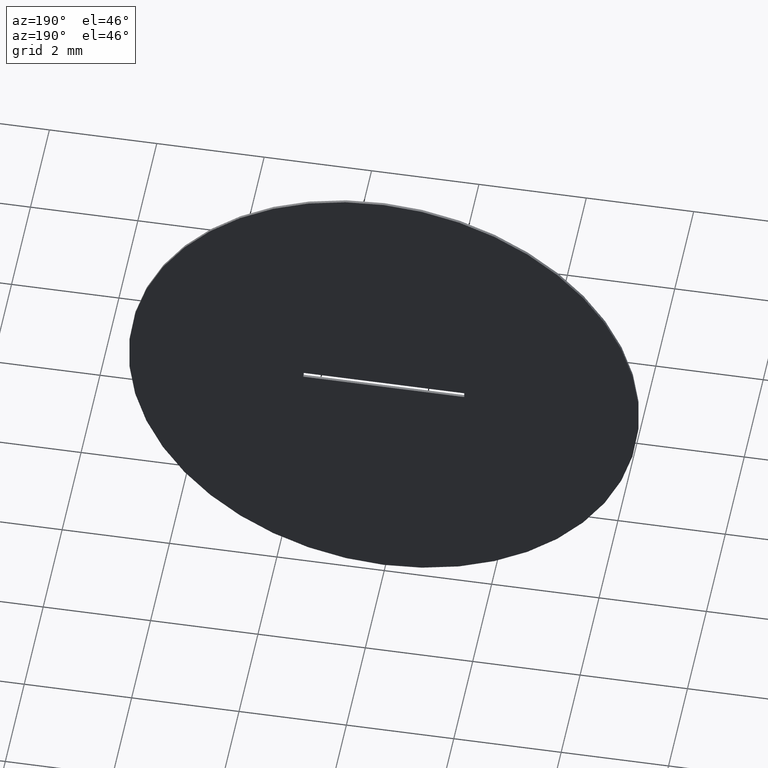
[diagram: clean part render]
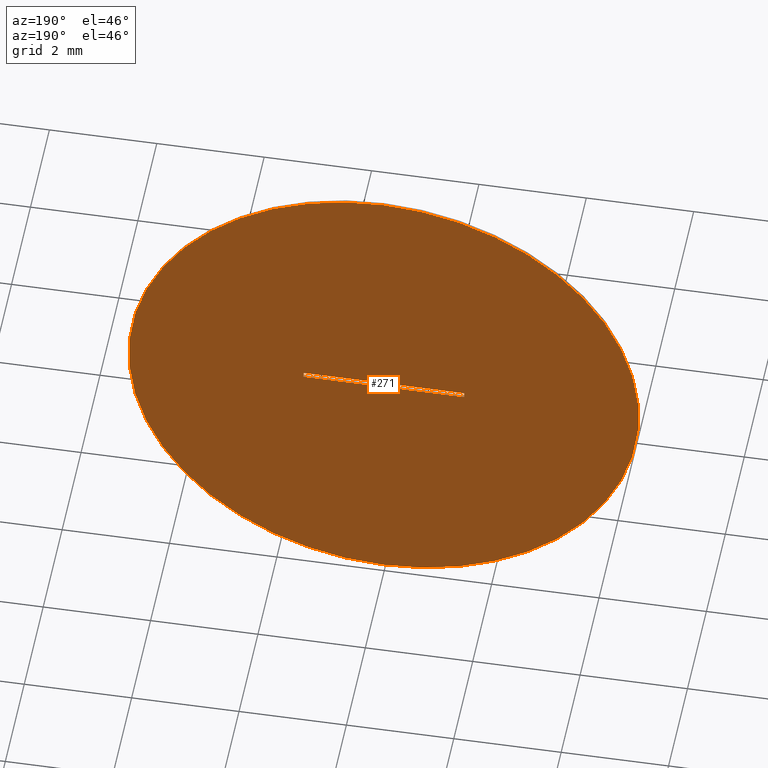
[diagram: same view with one face highlighted and labeled with its STEP entity id]
A machine part, auxiliary view. The second image highlights one B-rep face of the part: STEP entity #271.
In plain terms, the highlighted planar face has unit normal (0, 1, 0).
Its self-contained STEP definition (entity closure, byte-faithful):
#5 = VERTEX_POINT ( 'NONE', #56 ) ;
#9 = EDGE_LOOP ( 'NONE', ( #96, #263, #169, #195 ) ) ;
#10 = DIRECTION ( 'NONE',  ( 0.000000000000000000, 1.000000000000000000, 0.000000000000000000 ) ) ;
#13 = CARTESIAN_POINT ( 'NONE',  ( 1.500000000000000000, 0.05000000000000000278, -0.04999999999999999584 ) ) ;
#14 = VECTOR ( 'NONE', #99, 1000.000000000000000 ) ;
#23 = CARTESIAN_POINT ( 'NONE',  ( -1.500000000000000000, 0.05000000000000000278, 0.05000000000000000971 ) ) ;
#24 = AXIS2_PLACEMENT_3D ( 'NONE', #115, #265, #29 ) ;
#26 = EDGE_CURVE ( 'NONE', #5, #54, #279, .T. ) ;
#27 = FACE_BOUND ( 'NONE', #9, .T. ) ;
#29 = DIRECTION ( 'NONE',  ( 0.000000000000000000, -0.000000000000000000, 1.000000000000000000 ) ) ;
#35 = VECTOR ( 'NONE', #306, 1000.000000000000000 ) ;
#36 = VECTOR ( 'NONE', #101, 1000.000000000000000 ) ;
#38 = DIRECTION ( 'NONE',  ( 0.000000000000000000, 1.000000000000000000, 0.000000000000000000 ) ) ;
#40 = CARTESIAN_POINT ( 'NONE',  ( -1.500000000000000000, 0.05000000000000000278, -0.04999999999999999584 ) ) ;
#42 = CARTESIAN_POINT ( 'NONE',  ( 0.000000000000000000, 0.05000000000000000278, 0.000000000000000000 ) ) ;
#43 = LINE ( 'NONE', #13, #14 ) ;
#54 = VERTEX_POINT ( 'NONE', #222 ) ;
#56 = CARTESIAN_POINT ( 'NONE',  ( 0.000000000000000000, 0.05000000000000000278, -4.750000000000000000 ) ) ;
#61 = DIRECTION ( 'NONE',  ( -1.000000000000000000, -0.000000000000000000, -0.000000000000000000 ) ) ;
#66 = EDGE_CURVE ( 'NONE', #54, #5, #125, .T. ) ;
#68 = VERTEX_POINT ( 'NONE', #301 ) ;
#69 = LINE ( 'NONE', #23, #35 ) ;
#94 = ORIENTED_EDGE ( 'NONE', *, *, #26, .T. ) ;
#95 = VERTEX_POINT ( 'NONE', #273 ) ;
#96 = ORIENTED_EDGE ( 'NONE', *, *, #133, .F. ) ;
#99 = DIRECTION ( 'NONE',  ( -0.000000000000000000, -0.000000000000000000, -1.000000000000000000 ) ) ;
#101 = DIRECTION ( 'NONE',  ( 0.000000000000000000, 0.000000000000000000, 1.000000000000000000 ) ) ;
#115 = CARTESIAN_POINT ( 'NONE',  ( 0.000000000000000000, 0.05000000000000000278, 0.000000000000000000 ) ) ;
#116 = PLANE ( 'NONE',  #24 ) ;
#125 = CIRCLE ( 'NONE', #150, 4.750000000000000000 ) ;
#126 = VERTEX_POINT ( 'NONE', #156 ) ;
#133 = EDGE_CURVE ( 'NONE', #149, #68, #253, .T. ) ;
#143 = EDGE_CURVE ( 'NONE', #126, #149, #43, .T. ) ;
#149 = VERTEX_POINT ( 'NONE', #228 ) ;
#150 = AXIS2_PLACEMENT_3D ( 'NONE', #42, #10, #182 ) ;
#151 = CARTESIAN_POINT ( 'NONE',  ( 0.000000000000000000, 0.05000000000000000278, 0.000000000000000000 ) ) ;
#155 = LINE ( 'NONE', #40, #36 ) ;
#156 = CARTESIAN_POINT ( 'NONE',  ( 1.500000000000000000, 0.05000000000000000278, 0.05000000000000000971 ) ) ;
#169 = ORIENTED_EDGE ( 'NONE', *, *, #206, .F. ) ;
#178 = DIRECTION ( 'NONE',  ( 0.000000000000000000, 0.000000000000000000, 1.000000000000000000 ) ) ;
#182 = DIRECTION ( 'NONE',  ( 0.000000000000000000, 0.000000000000000000, 1.000000000000000000 ) ) ;
#188 = EDGE_CURVE ( 'NONE', #68, #95, #155, .T. ) ;
#195 = ORIENTED_EDGE ( 'NONE', *, *, #188, .F. ) ;
#206 = EDGE_CURVE ( 'NONE', #95, #126, #69, .T. ) ;
#222 = CARTESIAN_POINT ( 'NONE',  ( 5.817072295949927426E-16, 0.05000000000000000278, 4.750000000000000000 ) ) ;
#228 = CARTESIAN_POINT ( 'NONE',  ( 1.500000000000000000, 0.05000000000000000278, -0.04999999999999999584 ) ) ;
#238 = FACE_OUTER_BOUND ( 'NONE', #266, .T. ) ;
#251 = AXIS2_PLACEMENT_3D ( 'NONE', #151, #38, #178 ) ;
#252 = CARTESIAN_POINT ( 'NONE',  ( -1.500000000000000000, 0.05000000000000000278, -0.04999999999999999584 ) ) ;
#253 = LINE ( 'NONE', #252, #303 ) ;
#263 = ORIENTED_EDGE ( 'NONE', *, *, #143, .F. ) ;
#265 = DIRECTION ( 'NONE',  ( 0.000000000000000000, 1.000000000000000000, 0.000000000000000000 ) ) ;
#266 = EDGE_LOOP ( 'NONE', ( #94, #270 ) ) ;
#270 = ORIENTED_EDGE ( 'NONE', *, *, #66, .T. ) ;
#271 = ADVANCED_FACE ( 'NONE', ( #238, #27 ), #116, .T. ) ;
#273 = CARTESIAN_POINT ( 'NONE',  ( -1.500000000000000000, 0.05000000000000000278, 0.05000000000000000971 ) ) ;
#279 = CIRCLE ( 'NONE', #251, 4.750000000000000000 ) ;
#301 = CARTESIAN_POINT ( 'NONE',  ( -1.500000000000000000, 0.05000000000000000278, -0.04999999999999999584 ) ) ;
#303 = VECTOR ( 'NONE', #61, 1000.000000000000000 ) ;
#306 = DIRECTION ( 'NONE',  ( 1.000000000000000000, 0.000000000000000000, 0.000000000000000000 ) ) ;